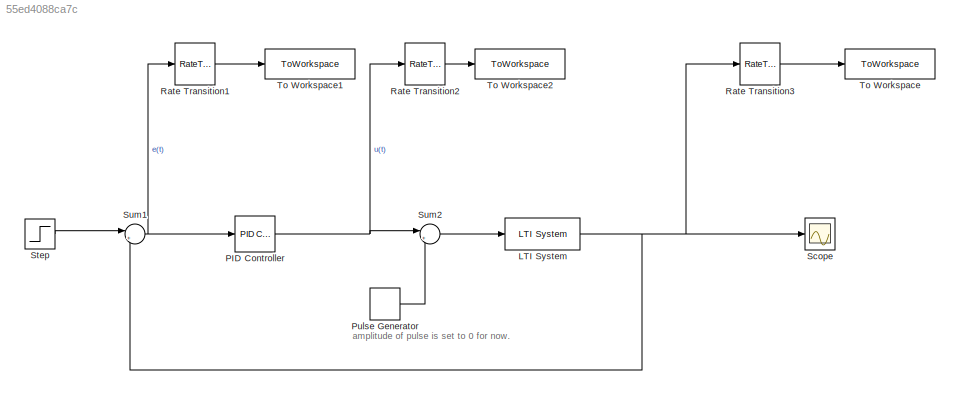
MODEL slx_55ed4088ca7c
KIND model
CONFIG AbsTol = auto
CONFIG EnableMultiTasking = off
CONFIG FixedStep = auto
CONFIG MaxStep = auto
CONFIG MinStep = auto
CONFIG RelTol = 1e-3
CONFIG SampleTimeConstraint = Unconstrained
CONFIG SolverName = VariableStepAuto
CONFIG StartTime = 0.0
CONFIG StopTime = stopTime
BLOCK [Reference] LTI System  REF=cstblocks/LTI System
  SourceBlock = cstblocks/LTI System
  SourceType = LTI Block
BLOCK [Reference] PID Controller  REF=slpidlib/PID Controller
  LibrarySourceBlock = simulink/Continuous/PID Controller
  SourceBlock = slpidlib/PID Controller
  SourceType = PID 1dof
BLOCK [DiscretePulseGenerator] Pulse Generator
  Amplitude = 0
  Period = 10
  PulseType = Time based
  PulseWidth = 5
BLOCK [RateTransition] Rate Transition1
  OutPortSampleTime = timeInterval
BLOCK [RateTransition] Rate Transition2
  OutPortSampleTime = timeInterval
BLOCK [RateTransition] Rate Transition3
  OutPortSampleTime = timeInterval
BLOCK [Scope] Scope
  Floating = off
  NumInputPorts = 1
  ScopeSpecificationString = Simulink.scopes.TimeScopeBlockCfg('CurrentConfiguration', extmgr.ConfigurationSet(extmgr.Configuration('Core','General UI',true),extmgr.Configuration('Core','Source UI',true),extmgr.Configuration('Sources','WiredSimulink',true),extmgr.Configuration('Visuals','Time Domain',true,'SerializedDisplays',{struct('MinYLimReal','-0.12521','MaxYLimReal','1.12685','YLabelReal','','MinYLimMag','0.00000','MaxY...<+1382ch>
BLOCK [Step] Step
  SampleTime = 0
  Time = 0
BLOCK [Sum] Sum1
  Inputs = |+-
BLOCK [Sum] Sum2
  Inputs = |++
BLOCK [ToWorkspace] To Workspace
  FixptAsFi = on
  MaxDataPoints = inf
  SampleTime = -1
  SaveFormat = Timeseries
  VariableName = y
BLOCK [ToWorkspace] To Workspace1
  FixptAsFi = on
  MaxDataPoints = inf
  SampleTime = -1
  SaveFormat = Timeseries
  VariableName = error
BLOCK [ToWorkspace] To Workspace2
  FixptAsFi = on
  MaxDataPoints = inf
  SampleTime = -1
  SaveFormat = Timeseries
  VariableName = input
ANNOTATION (root): amplitude of pulse is set to 0 for now.
NET LTI System:1 -> Rate Transition3:1, Scope:1, Sum1:2
NET PID Controller:1 -> Rate Transition2:1, Sum2:1
LINE Pulse Generator:1 -> Sum2:2
LINE Rate Transition1:1 -> To Workspace1:1
LINE Rate Transition2:1 -> To Workspace2:1
LINE Rate Transition3:1 -> To Workspace:1
LINE Step:1 -> Sum1:1
NET Sum1:1 -> PID Controller:1, Rate Transition1:1
LINE Sum2:1 -> LTI System:1
note: NET lines group one-source signal fan-out (src -> all destinations, sorted); 1:1 wires keep LINE
